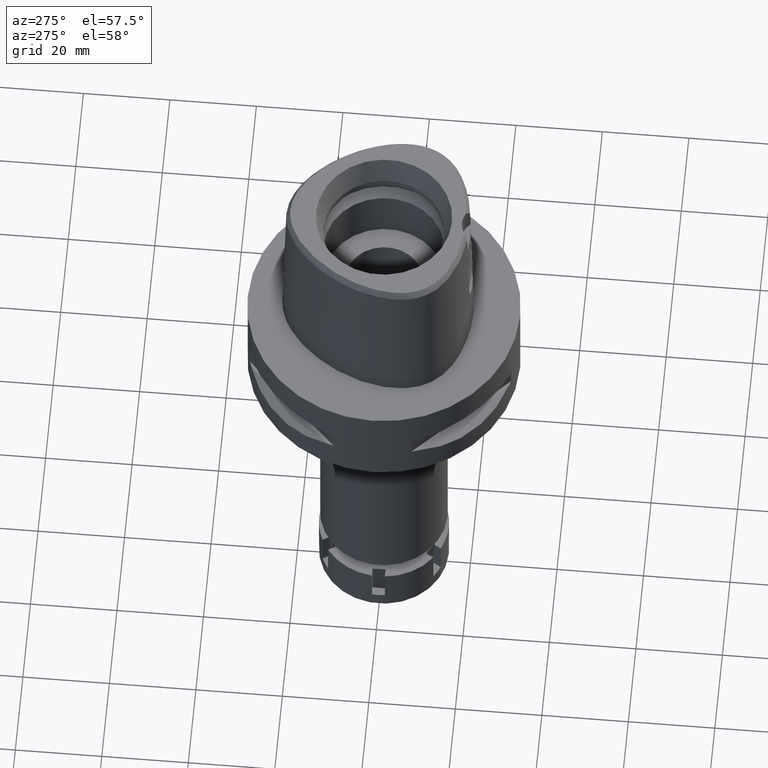
[diagram: clean part render]
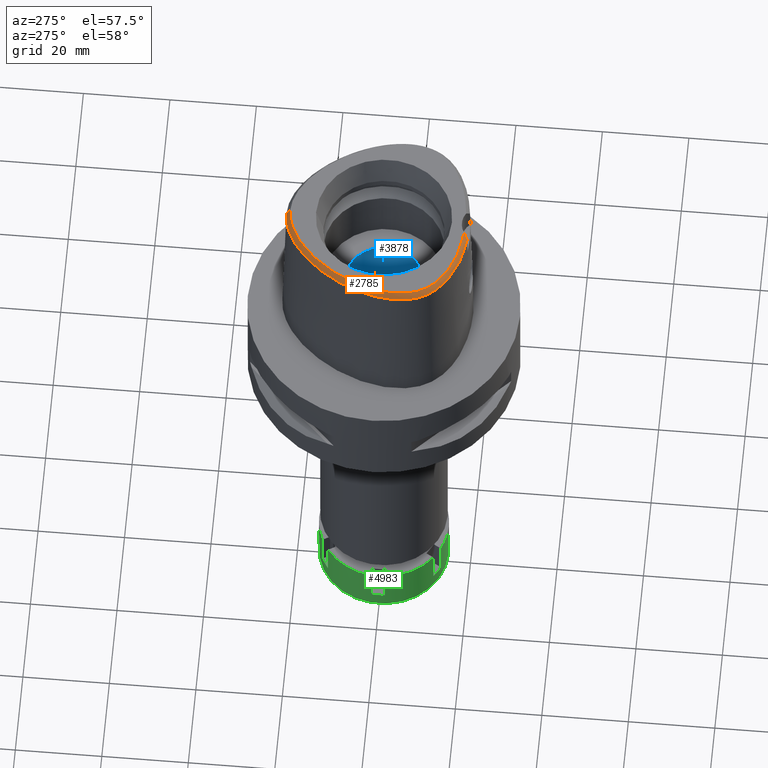
[diagram: same view with three faces highlighted in distinct colors, each labeled with its STEP entity id]
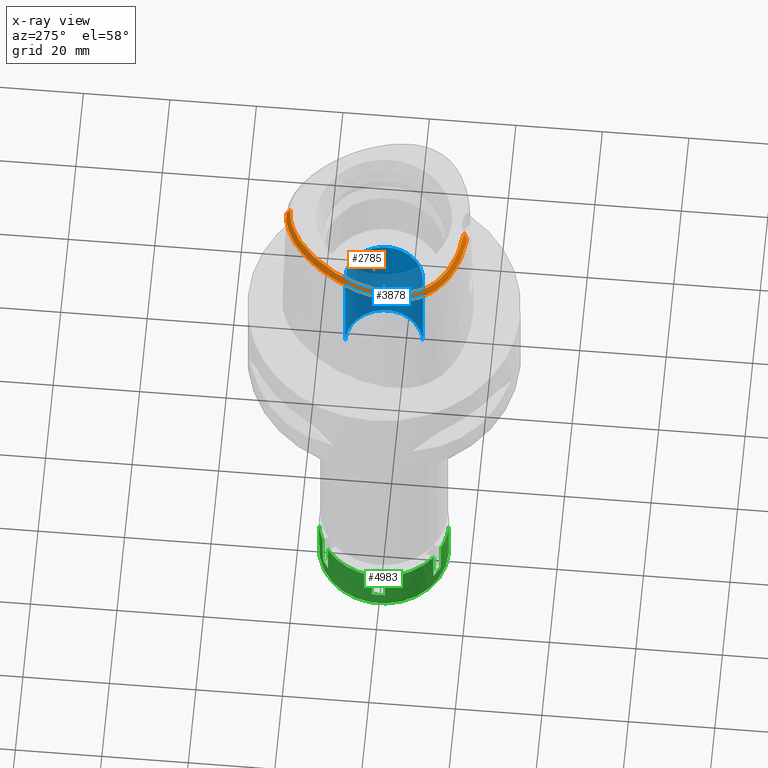
[diagram: x-ray of the same camera — body ghosted, the three highlighted faces saturated]
A machine part, auxiliary view with three faces highlighted in distinct colors.
The next image is the same camera in x-ray (body ghosted, the three faces saturated) — at least one of them is partly hidden behind the body in this view.
Their STEP definitions:

[orange] entity #2785 — the highlighted face is a freeform B-spline surface patch.
#8 = CARTESIAN_POINT ( 'NONE',  ( -3.470663397234000221E-11, 21.68728795390000030, 38.00000000000000000 ) ) ;
#13 = ORIENTED_EDGE ( 'NONE', *, *, #88, .F. ) ;
#19 = CARTESIAN_POINT ( 'NONE',  ( -16.29432981157000171, -13.68958117435999888, 38.16872381523999280 ) ) ;
#27 = CARTESIAN_POINT ( 'NONE',  ( -0.6436387824285999537, 21.57406716771999911, 38.16872382019000298 ) ) ;
#45 = CARTESIAN_POINT ( 'NONE',  ( -3.512396070640999568, -18.60880425035999863, 38.16872370361999600 ) ) ;
#57 = CARTESIAN_POINT ( 'NONE',  ( -0.02690056337536000236, 22.31012763485000150, 36.95830684941000044 ) ) ;
#85 = CARTESIAN_POINT ( 'NONE',  ( -7.798238249675000233, 19.30976713213999929, 37.56351523000000725 ) ) ;
#88 = EDGE_CURVE ( 'NONE', #388, #4146, #4520, .T. ) ;
#109 = CARTESIAN_POINT ( 'NONE',  ( -16.62719897768999999, 10.22545450412000001, 36.95830665445999585 ) ) ;
#131 = CARTESIAN_POINT ( 'NONE',  ( -16.93462122388000068, 10.40945952977000211, 36.35309808499999917 ) ) ;
#162 = CARTESIAN_POINT ( 'NONE',  ( -19.51006220654999979, 2.945084925828000078, 37.56351577405000342 ) ) ;
#188 = CARTESIAN_POINT ( 'NONE',  ( -11.14829298994999895, 17.58520638685000037, 36.35310210553999610 ) ) ;
#217 = CARTESIAN_POINT ( 'NONE',  ( -9.689030453037000612, 17.90471930168999748, 37.56351562825999935 ) ) ;
#240 = CARTESIAN_POINT ( 'NONE',  ( -12.44116897271117494, 14.89128547409651837, 37.99999999999884182 ) ) ;
#253 = CARTESIAN_POINT ( 'NONE',  ( -16.86607259343999843, -13.15495413868999997, 38.16872380465999726 ) ) ;
#273 = DIRECTION ( 'NONE',  ( -1.086165813592015260E-11, -0.5092834681090075977, 0.8605988316927122295 ) ) ;
#278 = CARTESIAN_POINT ( 'NONE',  ( -20.27898581531880495, -6.181921586189758067, 37.99999999999607070 ) ) ;
#289 = CARTESIAN_POINT ( 'NONE',  ( -21.01733586181999769, -4.317173790026999747, 36.95830674960999573 ) ) ;
#303 = CARTESIAN_POINT ( 'NONE',  ( -11.46564124494127235, 15.92741340513251203, 37.99999999999701572 ) ) ;
#315 = CARTESIAN_POINT ( 'NONE',  ( -19.11825126140000108, -12.14454190434999958, 36.35309777652999941 ) ) ;
#343 = CARTESIAN_POINT ( 'NONE',  ( -18.67497735023000160, -12.74270473300000006, 36.35309867869000300 ) ) ;
#357 = CARTESIAN_POINT ( 'NONE',  ( -15.00295592774147124, -14.82617991125886014, 37.99999999999964473 ) ) ;
#365 = CARTESIAN_POINT ( 'NONE',  ( -20.17981815055999917, -6.169836484275999844, 38.16872374791999789 ) ) ;
#386 = CARTESIAN_POINT ( 'NONE',  ( -16.53104942499999908, -13.95861899197999811, 37.56351516739000118 ) ) ;
#388 = VERTEX_POINT ( 'NONE', #2787 ) ;
#393 = CARTESIAN_POINT ( 'NONE',  ( 0.6287754934645000127, 22.28686580030999664, 36.95830633366999507 ) ) ;
#415 = CARTESIAN_POINT ( 'NONE',  ( -13.45760849536999970, -16.07874701501999937, 37.56351520148000134 ) ) ;
#422 = CARTESIAN_POINT ( 'NONE',  ( -4.474174503921999779, 21.44297435266999940, 36.95830662534999789 ) ) ;
#445 = CARTESIAN_POINT ( 'NONE',  ( -14.72040796257999951, -16.17604113694999768, 36.35309856269000051 ) ) ;
#450 = CARTESIAN_POINT ( 'NONE',  ( -2.886057697556000168, 21.94380378582999924, 36.95830701560000620 ) ) ;
#457 = CARTESIAN_POINT ( 'NONE',  ( -4.757642277158784516, 21.67478330407541165, 36.52186244848006424 ) ) ;
#463 = EDGE_CURVE ( 'NONE', #1185, #4046, #1888, .T. ) ;
#467 = CARTESIAN_POINT ( 'NONE',  ( -15.55887374948000001, -15.62730769746000270, 36.35309904140999748 ) ) ;
#475 = CARTESIAN_POINT ( 'NONE',  ( -2.798701059577999750, 21.59625093995000000, 37.56351537525000595 ) ) ;
#481 = CARTESIAN_POINT ( 'NONE',  ( -3.637738201363999835, -19.56971413236999879, 36.52186244848000030 ) ) ;
#494 = CARTESIAN_POINT ( 'NONE',  ( -11.55252081661999952, -17.37832976113999806, 36.95830648018000630 ) ) ;
#508 = CARTESIAN_POINT ( 'NONE',  ( -2.131033890882000126, 22.10901219944999951, 36.95830663274999495 ) ) ;
#531 = CARTESIAN_POINT ( 'NONE',  ( -14.55220022403000080, 12.70069801775000151, 37.56351541121999560 ) ) ;
#555 = CARTESIAN_POINT ( 'NONE',  ( -15.12949461999000000, 13.12519990955000004, 36.35309879171000347 ) ) ;
#581 = CARTESIAN_POINT ( 'NONE',  ( -19.71263020249000064, 4.589853288267000231, 36.35309744616999694 ) ) ;
#616 = CARTESIAN_POINT ( 'NONE',  ( -15.76051816029000108, 11.59852008273000123, 36.95830728170000157 ) ) ;
#646 = CARTESIAN_POINT ( 'NONE',  ( -12.36675498341000079, 14.82465314006000057, 38.16872370515999791 ) ) ;
#661 = CARTESIAN_POINT ( 'NONE',  ( -1.605104576365000191E-11, 22.56201468012000078, 36.52186680743999858 ) ) ;
#664 = CARTESIAN_POINT ( 'NONE',  ( -8.578220530113991771, 18.44656747109380746, 38.00000000000457590 ) ) ;
#675 = CARTESIAN_POINT ( 'NONE',  ( -17.91080863007000090, -13.09503517075000012, 36.95830667839000228 ) ) ;
#710 = CARTESIAN_POINT ( 'NONE',  ( -17.64378103977000123, -12.85602942180999975, 37.56351523395000669 ) ) ;
#731 = CARTESIAN_POINT ( 'NONE',  ( -3.637738201363999835, -19.56971413236999879, 36.52186244848000030 ) ) ;
#732 = CARTESIAN_POINT ( 'NONE',  ( -16.09805956313750386, 9.908742513516285655, 38.00000000000466116 ) ) ;
#740 = CARTESIAN_POINT ( 'NONE',  ( -18.82398216632999777, -11.93999202327999853, 36.95830645934999836 ) ) ;
#752 = CARTESIAN_POINT ( 'NONE',  ( -20.67704215115784194, -8.734985316448916848, 36.52186244848006424 ) ) ;
#756 = CARTESIAN_POINT ( 'NONE',  ( -18.31748213707382789, -11.58791794387434315, 37.99999999999423750 ) ) ;
#765 = CARTESIAN_POINT ( 'NONE',  ( -18.59065043438000231, -10.98381105831999882, 38.16872377513999481 ) ) ;
#783 = CARTESIAN_POINT ( 'NONE',  ( -20.40060226222749762, -4.311417605381639540, 38.00000000000596145 ) ) ;
#793 = CARTESIAN_POINT ( 'NONE',  ( -19.45562891287999818, -9.193149023882000392, 38.16872374790000322 ) ) ;
#818 = CARTESIAN_POINT ( 'NONE',  ( -7.575727454373000214, -17.91305824197000263, 38.16872348895999778 ) ) ;
#826 = CARTESIAN_POINT ( 'NONE',  ( -8.946150824643000377, 18.94152778470999721, 36.95830630630999991 ) ) ;
#841 = CARTESIAN_POINT ( 'NONE',  ( -12.32853476946000093, -16.25077885259999988, 38.16872381441000073 ) ) ;
#849 = CARTESIAN_POINT ( 'NONE',  ( -0.6885493688413000246, 22.28942238736000192, 36.95830648894000348 ) ) ;
#873 = CARTESIAN_POINT ( 'NONE',  ( -9.105547267357000152, -18.24122604947000070, 36.95830930912000412 ) ) ;
#881 = CARTESIAN_POINT ( 'NONE',  ( -1.311254254138000119, 21.51185336584000041, 38.16872385594000150 ) ) ;
#902 = CARTESIAN_POINT ( 'NONE',  ( -4.692859586827999863, -18.46833845743000069, 38.16872379206999710 ) ) ;
#908 = CARTESIAN_POINT ( 'NONE',  ( 0.3876265944191999435, 21.58211490614000283, 38.16872379590000008 ) ) ;
#915 = CARTESIAN_POINT ( 'NONE',  ( -19.88562090098038126, 4.345879983792427126, 36.52186244848006424 ) ) ;
#924 = CARTESIAN_POINT ( 'NONE',  ( -15.35458336243999966, -15.33290680021999997, 36.95830725940999884 ) ) ;
#932 = CARTESIAN_POINT ( 'NONE',  ( -6.890650778750000427, 19.87718702344999855, 37.56351522010999844 ) ) ;
#938 = CARTESIAN_POINT ( 'NONE',  ( -7.108589416785742188, 20.52412325828634465, 36.52186244848006424 ) ) ;
#964 = CARTESIAN_POINT ( 'NONE',  ( -15.16373769635999835, 11.20188546153000075, 38.16872369178999946 ) ) ;
#991 = CARTESIAN_POINT ( 'NONE',  ( -17.83752904520000016, 7.209949515747999804, 37.56351549445000160 ) ) ;
#1017 = CARTESIAN_POINT ( 'NONE',  ( -18.81170240876999955, 5.909790684736999644, 36.95830685404000349 ) ) ;
#1048 = CARTESIAN_POINT ( 'NONE',  ( -20.58870177908000088, 1.762756799173999855, 36.35310236188000488 ) ) ;
#1078 = CARTESIAN_POINT ( 'NONE',  ( -16.79844429764999703, 8.470633092706000511, 38.16872375537999318 ) ) ;
#1103 = CARTESIAN_POINT ( 'NONE',  ( -20.02973090975000048, -8.618895931241999264, 37.56351521209000310 ) ) ;
#1123 = CARTESIAN_POINT ( 'NONE',  ( -15.71788912669151728, -14.29843101566111407, 37.99999999999774047 ) ) ;
#1135 = CARTESIAN_POINT ( 'NONE',  ( -21.37564904598000126, -4.320518048958000179, 36.35309823542000629 ) ) ;
#1153 = CARTESIAN_POINT ( 'NONE',  ( -16.36032397153647011, -13.76458520345492609, 38.00000000000315481 ) ) ;
#1166 = CARTESIAN_POINT ( 'NONE',  ( -19.20356459454000131, -11.35542892024000139, 36.95830676710999541 ) ) ;
#1183 = CARTESIAN_POINT ( 'NONE',  ( -6.759433772717263089, 19.65454812513456773, 37.99999999999522515 ) ) ;
#1185 = VERTEX_POINT ( 'NONE', #2239 ) ;
#1191 = CARTESIAN_POINT ( 'NONE',  ( -20.28322115408999693, -3.282835526598999909, 38.16872379886999767 ) ) ;
#1208 = CARTESIAN_POINT ( 'NONE',  ( -19.28591707036977354, -9.869682450886722691, 37.99999999999383249 ) ) ;
#1216 = CARTESIAN_POINT ( 'NONE',  ( -19.54186096167000031, -10.75548879185999951, 36.95830645885000365 ) ) ;
#1235 = CARTESIAN_POINT ( 'NONE',  ( -19.64434054693230181, 1.520253387635584374, 37.99999999999242561 ) ) ;
#1244 = CARTESIAN_POINT ( 'NONE',  ( -15.65635849444000094, -14.21972652745999888, 38.16872378064000060 ) ) ;
#1257 = B_SPLINE_CURVE_WITH_KNOTS ( 'NONE', 3,
 ( #731, #1648, #2523, #3358, #5075, #3677, #2010, #2447, #4164, #2887, #752, #2469, #4185, #4266, #915, #2963, #3471, #5195, #938, #457, #2170, #5523, #2116 ),
 .UNSPECIFIED., .F., .F.,
 ( 4, 1, 1, 1, 1, 1, 1, 1, 1, 1, 1, 1, 1, 1, 1, 1, 1, 1, 1, 1, 4 ),
 ( 0.0000000000000000000, 0.03580973941715963338, 0.1234633994701163778, 0.1672902294965422088, 0.2111170595230732472, 0.2549438895494990920, 0.2768573045627119034, 0.2987707195759248813, 0.3206841345891377482, 0.3425975496023507261, 0.3864243796288816535, 0.4302512096552022491, 0.4740780396817332876, 0.5617316997345848106, 0.6493853597875417494, 0.7370390198403932169, 0.8246926798932449065, 0.8685195099196707513, 0.9123463399461700929, 0.9561731699726065958, 1.000000000000000000 ),
 .UNSPECIFIED. ) ;
#1268 = CARTESIAN_POINT ( 'NONE',  ( -13.62819684874000004, -16.39385889837000221, 36.95830660090000208 ) ) ;
#1275 = CARTESIAN_POINT ( 'NONE',  ( -3.774466227939000440, 22.06506135082999975, 36.35309852534999919 ) ) ;
#1276 = EDGE_CURVE ( 'NONE', #1185, #4146, #4040, .T. ) ;
#1290 = CARTESIAN_POINT ( 'NONE',  ( -16.09777656805000134, -14.78434909503000050, 36.95830673311999703 ) ) ;
#1298 = FACE_OUTER_BOUND ( 'NONE', #4043, .T. ) ;
#1319 = CARTESIAN_POINT ( 'NONE',  ( -6.372690828149999653, -19.27570801298000092, 36.35309788744999793 ) ) ;
#1326 = CARTESIAN_POINT ( 'NONE',  ( -3.558791132027999904, 21.38156946216999899, 37.56351534063000486 ) ) ;
#1347 = CARTESIAN_POINT ( 'NONE',  ( -3.587728129802000065, -19.32125625604999897, 36.95830720866000263 ) ) ;
#1354 = CARTESIAN_POINT ( 'NONE',  ( -6.341678578513000097, 20.99837909750999998, 36.35309870789000541 ) ) ;
#1378 = CARTESIAN_POINT ( 'NONE',  ( -9.460674903598000895, 17.62860925832999826, 38.16872363707999938 ) ) ;
#1402 = CARTESIAN_POINT ( 'NONE',  ( -2.128454679087000034, -19.79654798023999973, 36.35309896839999766 ) ) ;
#1411 = CARTESIAN_POINT ( 'NONE',  ( -10.90624337194999960, 17.32102727224000205, 36.95830919752000199 ) ) ;
#1438 = CARTESIAN_POINT ( 'NONE',  ( -18.70264189535999932, 4.222079149846000412, 38.16872385882999907 ) ) ;
#1460 = CARTESIAN_POINT ( 'NONE',  ( -3.339321438933200881, -19.25325016381178500, 37.10705438579190485 ) ) ;
#1462 = CARTESIAN_POINT ( 'NONE',  ( -19.89462825210000219, 1.584525003521999986, 37.56351635744000106 ) ) ;
#1492 = CARTESIAN_POINT ( 'NONE',  ( -20.54615437634000230, 0.3475411593985999748, 36.95830887824999422 ) ) ;
#1524 = CARTESIAN_POINT ( 'NONE',  ( -21.12417888789000031, -0.8637613582461999284, 36.35309858184000120 ) ) ;
#1553 = CARTESIAN_POINT ( 'NONE',  ( -17.83168944763000141, -12.07580734973999981, 38.16872373256000373 ) ) ;
#1568 = CARTESIAN_POINT ( 'NONE',  ( -18.79649882725046695, 4.256255933891416099, 37.99999999999936051 ) ) ;
#1580 = CARTESIAN_POINT ( 'NONE',  ( -20.97946740913999975, -5.318370187998000098, 36.95830727728999676 ) ) ;
#1598 = CARTESIAN_POINT ( 'NONE',  ( -8.930096025510399826, -17.65000298921459887, 38.00000000000218137 ) ) ;
#1607 = CARTESIAN_POINT ( 'NONE',  ( -21.35709808394999953, -3.234511685156000294, 36.35309803144000540 ) ) ;
#1625 = CARTESIAN_POINT ( 'NONE',  ( -3.522896839654274359, -18.70811514173501777, 38.00000000000078870 ) ) ;
#1635 = CARTESIAN_POINT ( 'NONE',  ( -20.58366300915999858, -7.955139712395000728, 36.95830656030000227 ) ) ;
#1648 = CARTESIAN_POINT ( 'NONE',  ( -4.467522189395195298, -19.48130287050924991, 36.52186244848006424 ) ) ;
#1650 = CARTESIAN_POINT ( 'NONE',  ( -18.24302769442361694, 5.671232572958188278, 37.99999999999500488 ) ) ;
#1658 = CARTESIAN_POINT ( 'NONE',  ( -2.715103909121999948, -19.75697376311000042, 36.35309907407000196 ) ) ;
#1686 = CARTESIAN_POINT ( 'NONE',  ( -6.304958321667999854, -18.92387912382999815, 36.95830652951000417 ) ) ;
#1689 = B_SPLINE_SURFACE_WITH_KNOTS ( 'NONE', 3, 3, ( 
 ( #4258, #1693, #393, #2596 ),
 ( #908, #3910, #3884, #4700 ),
 ( #5548, #3832, #57, #3039 ),
 ( #27, #3407, #849, #4757 ),
 ( #881, #3457, #2566, #4317 ),
 ( #2624, #4341, #508, #5184 ),
 ( #2136, #475, #450, #2163 ),
 ( #2541, #1326, #1770, #1275 ),
 ( #2983, #5571, #422, #2646 ),
 ( #3486, #1719, #3432, #5212 ),
 ( #5151, #3008, #4782, #1354 ),
 ( #3065, #932, #4367, #2221 ),
 ( #3941, #85, #1796, #3510 ),
 ( #5238, #4729, #826, #3120 ),
 ( #1378, #217, #4504, #4055 ),
 ( #2721, #1821, #1411, #188 ),
 ( #3091, #2675, #2276, #2249 ),
 ( #646, #3989, #4807, #2755 ),
 ( #4082, #3178, #3536, #5292 ),
 ( #4392, #531, #4863, #555 ),
 ( #964, #4023, #616, #3595 ),
 ( #5263, #3966, #109, #131 ),
 ( #1078, #4838, #2340, #1853 ),
 ( #1903, #991, #2697, #3569 ),
 ( #3622, #4417, #1017, #4441 ),
 ( #1438, #3150, #4926, #581 ),
 ( #2309, #162, #1877, #5343 ),
 ( #5315, #1462, #4889, #1048 ),
 ( #2368, #4472, #1492, #3216 ),
 ( #2790, #1933, #3658, #1524 ),
 ( #2401, #3716, #2075, #1968 ),
 ( #1191, #5013, #2512, #1607 ),
 ( #5432, #4151, #289, #1135 ),
 ( #2873, #3298, #1580, #4228 ),
 ( #365, #2052, #4955, #4175 ),
 ( #3347, #2023, #1997, #4597 ),
 ( #2844, #5378, #1635, #3773 ),
 ( #3323, #1103, #2899, #2818 ),
 ( #793, #5486, #4203, #5043 ),
 ( #5065, #3243, #2924, #2432 ),
 ( #4982, #5407, #1216, #4118 ),
 ( #765, #5462, #1166, #2457 ),
 ( #3269, #4623, #740, #315 ),
 ( #1553, #3744, #2483, #343 ),
 ( #4535, #710, #675, #4648 ),
 ( #253, #3688, #4568, #3424 ),
 ( #19, #386, #2129, #2557 ),
 ( #1244, #2095, #1290, #1710 ),
 ( #2637, #5172, #924, #467 ),
 ( #2587, #2534, #1762, #445 ),
 ( #2998, #415, #1268, #4358 ),
 ( #841, #4310, #3851, #2180 ),
 ( #2156, #4719, #494, #2616 ),
 ( #5092, #4251, #2951, #5142 ),
 ( #1733, #3031, #873, #5540 ),
 ( #818, #4673, #4749, #3876 ),
 ( #3448, #3824, #1686, #1319 ),
 ( #902, #4333, #3399, #3900 ),
 ( #45, #3479, #1347, #5205 ),
 ( #3058, #3797, #5507, #1658 ),
 ( #4773, #3369, #5119, #2974 ),
 ( #4692, #4278, #5569, #1402 ) ),
 .UNSPECIFIED., .F., .F., .F.,
 ( 4, 1, 1, 1, 1, 1, 1, 1, 1, 1, 1, 1, 1, 1, 1, 1, 1, 1, 1, 1, 1, 1, 1, 1, 1, 1, 1, 1, 1, 1, 1, 1, 1, 1, 1, 1, 1, 1, 1, 1, 1, 1, 1, 1, 1, 1, 1, 1, 1, 1, 1, 1, 1, 1, 1, 1, 1, 1, 1, 4 ),
 ( 4, 4 ),
 ( -0.01585043674195000044, 0.0000000000000000000, 0.01776034072165999858, 0.03552068144391999638, 0.05328102216616999870, 0.07104136288842999303, 0.08880170361069000817, 0.1065620443330000111, 0.1243223850551999909, 0.1420827257775000019, 0.1598430664997000095, 0.1776034072219000171, 0.1953637479442000002, 0.2131240886664000078, 0.2308844293887999943, 0.2486447701109999742, 0.2664051108332999851, 0.2841654515554999927, 0.3019257922778000314, 0.3196861329999999835, 0.3374464737223000221, 0.3552068144444999742, 0.3729671551668000129, 0.3907274958890999961, 0.4084878366113000037, 0.4262481773335999868, 0.4440085180557999944, 0.4617688587780999776, 0.4795291995003000407, 0.4972895402225999684, 0.5150498809447999760, 0.5328102216671000146, 0.5505705623893999423, 0.5683309031115999499, 0.5860912438338999886, 0.6038515845561001072, 0.6216119252783999238, 0.6393722660005999314, 0.6571326067228999701, 0.6748929474452000088, 0.6926532881674000164, 0.7104136288896999440, 0.7281739696118999516, 0.7459343103341999903, 0.7636946510563999979, 0.7814549917787000366, 0.7992153325008999332, 0.8169756732231999719, 0.8347360139455000105, 0.8524963546678000492, 0.8702566953900000568, 0.8880170361122000644, 0.9057773768344999921, 0.9235377175566999997, 0.9412980582790000383, 0.9590583990012000459, 0.9768187397236000047, 0.9945790804457999013, 1.000000000000000000, 1.006922200500000031 ),
 ( -0.09052495085692000010, 1.090549176495999806 ),
 .UNSPECIFIED. ) ;
#1693 = CARTESIAN_POINT ( 'NONE',  ( 0.6089110810236999516, 21.92928468042000034, 37.56351508950999829 ) ) ;
#1710 = CARTESIAN_POINT ( 'NONE',  ( -16.31848560485000021, -15.06666037880999909, 36.35309820935999880 ) ) ;
#1719 = CARTESIAN_POINT ( 'NONE',  ( -5.163925551242999568, 20.77028980652000101, 37.56351535171000222 ) ) ;
#1733 = CARTESIAN_POINT ( 'NONE',  ( -8.901678066227999508, -17.55424218025000016, 38.16872336340999539 ) ) ;
#1752 = CARTESIAN_POINT ( 'NONE',  ( -2.735698246183097648, 21.34559102902244732, 38.00000000000188294 ) ) ;
#1762 = CARTESIAN_POINT ( 'NONE',  ( -14.53284756085999874, -15.87071777937000228, 36.95830695660000487 ) ) ;
#1770 = CARTESIAN_POINT ( 'NONE',  ( -3.666628679983999994, 21.72331540649999582, 36.95830693298999847 ) ) ;
#1796 = CARTESIAN_POINT ( 'NONE',  ( -7.996536422871000305, 19.60821335981000146, 36.95830666898000061 ) ) ;
#1821 = CARTESIAN_POINT ( 'NONE',  ( -10.66419375395000024, 17.05684815763000373, 37.56351628950000077 ) ) ;
#1844 = ORIENTED_EDGE ( 'NONE', *, *, #1276, .T. ) ;
#1853 = CARTESIAN_POINT ( 'NONE',  ( -17.74578044748000138, 8.978423837253000528, 36.35309845592999523 ) ) ;
#1877 = CARTESIAN_POINT ( 'NONE',  ( -19.85228703218999868, 3.051175565922000121, 36.95830796735999968 ) ) ;
#1888 = B_SPLINE_CURVE_WITH_KNOTS ( 'NONE', 3,
 ( #3176, #5261, #1460, #2365 ),
 .UNSPECIFIED., .F., .F.,
 ( 4, 4 ),
 ( 0.0000000000000000000, 1.000000000000000000 ),
 .UNSPECIFIED. ) ;
#1903 = CARTESIAN_POINT ( 'NONE',  ( -17.51410271551999998, 7.055799692946999713, 38.16872368880000721 ) ) ;
#1933 = CARTESIAN_POINT ( 'NONE',  ( -20.41563536772000020, -0.9710199763908999859, 37.56351535559999633 ) ) ;
#1957 = CARTESIAN_POINT ( 'NONE',  ( -7.655222869371971051, 19.09452359226109763, 37.99999999999761968 ) ) ;
#1968 = CARTESIAN_POINT ( 'NONE',  ( -21.27534687873999886, -2.081884351022999624, 36.35309762211000617 ) ) ;
#1988 = CARTESIAN_POINT ( 'NONE',  ( -19.26324493738805188, 2.868570891456949212, 37.99999999999948841 ) ) ;
#1997 = CARTESIAN_POINT ( 'NONE',  ( -20.75784957939000108, -7.134023522072999945, 36.95830652513000558 ) ) ;
#2010 = CARTESIAN_POINT ( 'NONE',  ( -17.90324032096892992, -13.53935111954918469, 36.52186244848006424 ) ) ;
#2011 = CARTESIAN_POINT ( 'NONE',  ( -17.60426951086490988, 7.098774535281921594, 37.99999999999295142 ) ) ;
#2023 = CARTESIAN_POINT ( 'NONE',  ( -20.40522132167000180, -7.070233729153000191, 37.56351516972999605 ) ) ;
#2052 = CARTESIAN_POINT ( 'NONE',  ( -20.53553040265000007, -6.213185481441000135, 37.56351534152000227 ) ) ;
#2067 = CARTESIAN_POINT ( 'NONE',  ( -4.706994425064851661, -18.56721852572427167, 38.00000000000611067 ) ) ;
#2075 = CARTESIAN_POINT ( 'NONE',  ( -20.91875502418999844, -2.116976979544000326, 36.95830636167000449 ) ) ;
#2095 = CARTESIAN_POINT ( 'NONE',  ( -15.87706753124000159, -14.50203781123999924, 37.56351525688000237 ) ) ;
#2116 = CARTESIAN_POINT ( 'NONE',  ( -1.605104576365000191E-11, 22.56201468012000078, 36.52186680743999858 ) ) ;
#2129 = CARTESIAN_POINT ( 'NONE',  ( -16.76776903842999999, -14.22765680959999912, 36.95830651954000245 ) ) ;
#2136 = CARTESIAN_POINT ( 'NONE',  ( -2.711344421600000221, 21.24869809405999987, 38.16872373488999415 ) ) ;
#2156 = CARTESIAN_POINT ( 'NONE',  ( -11.27990856527999952, -16.71558795316000001, 38.16872382160999422 ) ) ;
#2163 = CARTESIAN_POINT ( 'NONE',  ( -2.973414335534000141, 22.29135663171999937, 36.35309865596000378 ) ) ;
#2170 = CARTESIAN_POINT ( 'NONE',  ( -2.376843896518022525, 22.39422508473924012, 36.52186244848006424 ) ) ;
#2180 = CARTESIAN_POINT ( 'NONE',  ( -12.78901410641999981, -17.22210534259999903, 36.35309787969999462 ) ) ;
#2221 = CARTESIAN_POINT ( 'NONE',  ( -7.254529020842999998, 20.49458756770999912, 36.35309807064000154 ) ) ;
#2239 = CARTESIAN_POINT ( 'NONE',  ( -2.682279906006999948, -18.78035848609999903, 38.00000000000000000 ) ) ;
#2249 = CARTESIAN_POINT ( 'NONE',  ( -12.15927216456999993, 16.61260939799000269, 36.35310190737999392 ) ) ;
#2276 = CARTESIAN_POINT ( 'NONE',  ( -11.90437454573000053, 16.36081147191999818, 36.95830907218000050 ) ) ;
#2309 = CARTESIAN_POINT ( 'NONE',  ( -19.16783738091000089, 2.838994285734000034, 38.16872358073000271 ) ) ;
#2340 = CARTESIAN_POINT ( 'NONE',  ( -17.43000173086999638, 8.809160255736999900, 36.95830688907999928 ) ) ;
#2365 = CARTESIAN_POINT ( 'NONE',  ( -3.637738201363999835, -19.56971413236999879, 36.52186244848000030 ) ) ;
#2368 = CARTESIAN_POINT ( 'NONE',  ( -19.84401643730999965, 0.2042856708023999823, 38.16872343320000027 ) ) ;
#2387 = CARTESIAN_POINT ( 'NONE',  ( -20.16012968311473941, -1.009698174524138237, 37.99999999999798916 ) ) ;
#2401 = CARTESIAN_POINT ( 'NONE',  ( -20.20557131509000115, -2.187162236584999864, 38.16872384081000291 ) ) ;
#2432 = CARTESIAN_POINT ( 'NONE',  ( -20.17653247467000099, -10.26699311273000070, 36.35309825342999801 ) ) ;
#2447 = CARTESIAN_POINT ( 'NONE',  ( -18.90964971337956158, -12.28759719905196945, 36.52186244848006424 ) ) ;
#2449 = CARTESIAN_POINT ( 'NONE',  ( -17.91005512243981457, -12.13778127739715451, 37.99999999999999289 ) ) ;
#2457 = CARTESIAN_POINT ( 'NONE',  ( -19.51002167461999903, -11.54123785121000090, 36.35309826309000414 ) ) ;
#2469 = CARTESIAN_POINT ( 'NONE',  ( -21.14970188364242532, -6.717195958887598906, 36.52186244848006424 ) ) ;
#2483 = CARTESIAN_POINT ( 'NONE',  ( -18.39388138270000184, -12.52040560524999968, 36.95830702997999850 ) ) ;
#2500 = CARTESIAN_POINT ( 'NONE',  ( -20.38301517462847556, -3.278344853327750386, 38.00000000000068923 ) ) ;
#2512 = CARTESIAN_POINT ( 'NONE',  ( -20.99913910733000222, -3.250619632303999751, 36.95830662059000105 ) ) ;
#2523 = CARTESIAN_POINT ( 'NONE',  ( -7.300578999876884190, -19.07170748892257706, 36.52186244848006424 ) ) ;
#2525 = CARTESIAN_POINT ( 'NONE',  ( -5.893543501601380186, 20.13235399352179300, 38.00000000000135714 ) ) ;
#2534 = CARTESIAN_POINT ( 'NONE',  ( -14.34528715913999974, -15.56539442177999888, 37.56351535051999946 ) ) ;
#2541 = CARTESIAN_POINT ( 'NONE',  ( -3.450953584073000346, 21.03982351783999860, 38.16872374826999703 ) ) ;
#2557 = CARTESIAN_POINT ( 'NONE',  ( -17.00448865185999736, -14.49669462722000013, 36.35309787168999662 ) ) ;
#2566 = CARTESIAN_POINT ( 'NONE',  ( -1.400356848483000016, 22.22304444783999955, 36.95830626822999676 ) ) ;
#2587 = CARTESIAN_POINT ( 'NONE',  ( -14.15772675742000075, -15.26007106419999992, 38.16872374443999405 ) ) ;
#2596 = CARTESIAN_POINT ( 'NONE',  ( 0.6486399059052999627, 22.64444692021000094, 36.35309757783999629 ) ) ;
#2616 = CARTESIAN_POINT ( 'NONE',  ( -11.68882694229000130, -17.70970066514000152, 36.35309780946000302 ) ) ;
#2624 = CARTESIAN_POINT ( 'NONE',  ( -1.998559107379999977, 21.40462102677999923, 38.16872379689999661 ) ) ;
#2637 = CARTESIAN_POINT ( 'NONE',  ( -14.94600258835999895, -14.74410500574000160, 38.16872369540000420 ) ) ;
#2646 = CARTESIAN_POINT ( 'NONE',  ( -4.601767809367999895, 21.77783845468999857, 36.35309803898000069 ) ) ;
#2675 = CARTESIAN_POINT ( 'NONE',  ( -11.64947692688000025, 16.10901354585000078, 37.56351623697999997 ) ) ;
#2697 = CARTESIAN_POINT ( 'NONE',  ( -18.16095537487999678, 7.364099338549999985, 36.95830730011000043 ) ) ;
#2721 = CARTESIAN_POINT ( 'NONE',  ( -10.42214413594000000, 16.79266904300999741, 38.16872338149000399 ) ) ;
#2755 = CARTESIAN_POINT ( 'NONE',  ( -13.16751905661999977, 15.54167932979000000, 36.35309894610999493 ) ) ;
#2785 = ADVANCED_FACE ( 'NONE', ( #1298 ), #1689, .F. ) ;
#2787 = CARTESIAN_POINT ( 'NONE',  ( -1.605104576365000191E-11, 22.56201468012000078, 36.52186680743999858 ) ) ;
#2790 = CARTESIAN_POINT ( 'NONE',  ( -20.06136360764000059, -1.024649285463000048, 38.16872374247999744 ) ) ;
#2818 = CARTESIAN_POINT ( 'NONE',  ( -20.71498900974999913, -8.828955522482001328, 36.35309804034999814 ) ) ;
#2832 = CARTESIAN_POINT ( 'NONE',  ( -18.67608643722154582, -11.03561202290969767, 38.00000000000121503 ) ) ;
#2844 = CARTESIAN_POINT ( 'NONE',  ( -19.88709864279000072, -7.786374139105999959, 38.16872380862999847 ) ) ;
#2865 = CARTESIAN_POINT ( 'NONE',  ( -14.21001600787598207, -15.34519100086147603, 37.99999999999534595 ) ) ;
#2873 = CARTESIAN_POINT ( 'NONE',  ( -20.26429661509000013, -5.272008183739000486, 38.16872369250000219 ) ) ;
#2887 = CARTESIAN_POINT ( 'NONE',  ( -20.09619618740711999, -10.23243843868569947, 36.52186244848006424 ) ) ;
#2889 = CARTESIAN_POINT ( 'NONE',  ( -20.30498420087046441, -2.177378896258037155, 38.00000000000289191 ) ) ;
#2899 = CARTESIAN_POINT ( 'NONE',  ( -20.37235995974999625, -8.723925726861999408, 36.95830662621999352 ) ) ;
#2914 = CARTESIAN_POINT ( 'NONE',  ( -19.98419490691983214, -7.809898894995765062, 37.99999999999734968 ) ) ;
#2924 = CARTESIAN_POINT ( 'NONE',  ( -19.84924639291999782, -10.12098817151999874, 36.95830676098999845 ) ) ;
#2941 = CARTESIAN_POINT ( 'NONE',  ( -2.017025177696853966, 21.50280829367783753, 37.99999999999917577 ) ) ;
#2951 = CARTESIAN_POINT ( 'NONE',  ( -10.37636954249999910, -17.82808771921999735, 36.95830829501999659 ) ) ;
#2963 = CARTESIAN_POINT ( 'NONE',  ( -17.27359245833161694, 9.972912913898657195, 36.52186244848006424 ) ) ;
#2965 = CARTESIAN_POINT ( 'NONE',  ( -3.481017203589023001, 21.13509756882046631, 38.00000000000038369 ) ) ;
#2974 = CARTESIAN_POINT ( 'NONE',  ( -2.339544747279999726, -19.78355784510999982, 36.35309902211999855 ) ) ;
#2983 = CARTESIAN_POINT ( 'NONE',  ( -4.218987893030000436, 20.77324614861000285, 38.16872379808999938 ) ) ;
#2998 = CARTESIAN_POINT ( 'NONE',  ( -13.28702014200000114, -15.76363513167000008, 38.16872380205999349 ) ) ;
#3008 = CARTESIAN_POINT ( 'NONE',  ( -6.012314472062000092, 20.36187997206000233, 37.56351538900999998 ) ) ;
#3031 = CARTESIAN_POINT ( 'NONE',  ( -9.003612666792999875, -17.89773411486000043, 37.56351633626000108 ) ) ;
#3039 = CARTESIAN_POINT ( 'NONE',  ( -0.02767976356809999719, 22.66848708667000167, 36.35309839322000158 ) ) ;
#3058 = CARTESIAN_POINT ( 'NONE',  ( -2.630796431740999974, -18.68579056493999957, 38.16872369205000126 ) ) ;
#3065 = CARTESIAN_POINT ( 'NONE',  ( -6.708711657702999709, 19.56848675131999826, 38.16872379485000266 ) ) ;
#3091 = CARTESIAN_POINT ( 'NONE',  ( -11.39457930803999908, 15.85721561977999983, 38.16872340177999945 ) ) ;
#3120 = CARTESIAN_POINT ( 'NONE',  ( -9.159912934353998892, 19.22909247410000333, 36.35309753458000159 ) ) ;
#3150 = CARTESIAN_POINT ( 'NONE',  ( -19.03930466439999947, 4.344670529319999197, 37.56351505460999363 ) ) ;
#3176 = CARTESIAN_POINT ( 'NONE',  ( -2.682279906006999948, -18.78035848609999903, 38.00000000000000000 ) ) ;
#3178 = CARTESIAN_POINT ( 'NONE',  ( -13.60498005374000030, 13.92553832673000080, 37.56351508224999947 ) ) ;
#3216 = CARTESIAN_POINT ( 'NONE',  ( -20.89722334585000141, 0.4191689036967999882, 36.35310160078000052 ) ) ;
#3243 = CARTESIAN_POINT ( 'NONE',  ( -19.52196031117999908, -9.974983230300999537, 37.56351526855999623 ) ) ;
#3257 = CARTESIAN_POINT ( 'NONE',  ( -13.33457781969976352, -15.85148397417110466, 38.00000000000137135 ) ) ;
#3269 = CARTESIAN_POINT ( 'NONE',  ( -18.23544397618000090, -11.53089226113999999, 38.16872382497999894 ) ) ;
#3283 = CARTESIAN_POINT ( 'NONE',  ( -19.54919922641843755, -9.228169790568353292, 38.00000000000420641 ) ) ;
#3298 = CARTESIAN_POINT ( 'NONE',  ( -20.62188201210999949, -5.295189185867999804, 37.56351548488999725 ) ) ;
#3312 = CARTESIAN_POINT ( 'NONE',  ( -15.24692477332278528, 11.25717358966698711, 38.00000000000222400 ) ) ;
#3323 = CARTESIAN_POINT ( 'NONE',  ( -19.68710185974999760, -8.513866135623000986, 38.16872379795999848 ) ) ;
#3338 = CARTESIAN_POINT ( 'NONE',  ( -12.37132652997963511, -16.34104299088095757, 37.99999999999533884 ) ) ;
#3347 = CARTESIAN_POINT ( 'NONE',  ( -20.05259306393999807, -7.006443936232000347, 38.16872381433000072 ) ) ;
#3358 = CARTESIAN_POINT ( 'NONE',  ( -10.91891098965447782, -18.03046406390822298, 36.52186244848006424 ) ) ;
#3361 = CARTESIAN_POINT ( 'NONE',  ( -14.34402387966080106, 12.54761970512710967, 37.99999999999822364 ) ) ;
#3369 = CARTESIAN_POINT ( 'NONE',  ( -2.291171689391000132, -19.06888159092000024, 37.56351547228999976 ) ) ;
#3386 = CARTESIAN_POINT ( 'NONE',  ( -4.254559144977585028, 20.86660163697103343, 37.99999999999293721 ) ) ;
#3399 = CARTESIAN_POINT ( 'NONE',  ( -4.794262300189999770, -19.17769975710999830, 36.95830666261999653 ) ) ;
#3407 = CARTESIAN_POINT ( 'NONE',  ( -0.6660940756349000846, 21.93174477753999696, 37.56351515456000101 ) ) ;
#3424 = CARTESIAN_POINT ( 'NONE',  ( -17.62265931448999723, -13.91874722709999901, 36.35309797484000427 ) ) ;
#3432 = CARTESIAN_POINT ( 'NONE',  ( -5.310491089656999897, 21.09728676118000124, 36.95830695943000421 ) ) ;
#3448 = CARTESIAN_POINT ( 'NONE',  ( -6.169493308705000345, -18.22022134552999972, 38.16872381361999800 ) ) ;
#3457 = CARTESIAN_POINT ( 'NONE',  ( -1.355805551310000023, 21.86744890683999998, 37.56351506208999780 ) ) ;
#3471 = CARTESIAN_POINT ( 'NONE',  ( -13.70645028111238162, 15.04851272300706633, 36.52186244848006424 ) ) ;
#3479 = CARTESIAN_POINT ( 'NONE',  ( -3.550062100220999994, -18.96503025319999836, 37.56351545614000287 ) ) ;
#3486 = CARTESIAN_POINT ( 'NONE',  ( -5.017360012830000215, 20.44329285184999989, 38.16872374397999579 ) ) ;
#3510 = CARTESIAN_POINT ( 'NONE',  ( -8.194834596066998600, 19.90665958749000097, 36.35309810796000107 ) ) ;
#3536 = CARTESIAN_POINT ( 'NONE',  ( -13.88315504820999990, 14.15134445426999932, 36.95830631635999453 ) ) ;
#3569 = CARTESIAN_POINT ( 'NONE',  ( -18.48438170456000051, 7.518249161351000076, 36.35309910575999481 ) ) ;
#3595 = CARTESIAN_POINT ( 'NONE',  ( -16.05890839226000111, 11.79683739332999970, 36.35309907665999418 ) ) ;
#3622 = CARTESIAN_POINT ( 'NONE',  ( -18.15091905667999939, 5.632593150201000043, 38.16872376104999631 ) ) ;
#3658 = CARTESIAN_POINT ( 'NONE',  ( -20.76990712781000070, -0.9173906673185999727, 36.95830696872000232 ) ) ;
#3677 = CARTESIAN_POINT ( 'NONE',  ( -16.39211280191463871, -14.95758113319273974, 36.52186244848006424 ) ) ;
#3678 = CARTESIAN_POINT ( 'NONE',  ( -19.78262210839870150, -8.543146992552843599, 38.00000000000232347 ) ) ;
#3688 = CARTESIAN_POINT ( 'NONE',  ( -17.11826816711999655, -13.40955183482999935, 37.56351519472000433 ) ) ;
#3703 = CARTESIAN_POINT ( 'NONE',  ( -18.99520880203937878, -10.46968343926073075, 38.00000000000314770 ) ) ;
#3716 = CARTESIAN_POINT ( 'NONE',  ( -20.56216316964000157, -2.152069608064000050, 37.56351510124000015 ) ) ;
#3730 = CARTESIAN_POINT ( 'NONE',  ( -10.48962422759467117, 16.86631853278972315, 38.00000000000569855 ) ) ;
#3744 = CARTESIAN_POINT ( 'NONE',  ( -18.11278541516000118, -12.29810647750000108, 37.56351538127000111 ) ) ;
#3763 = CARTESIAN_POINT ( 'NONE',  ( -2.682279906006999948, -18.78035848609999903, 38.00000000000000000 ) ) ;
#3773 = CARTESIAN_POINT ( 'NONE',  ( -20.93194519234999618, -8.039522499039000181, 36.35309793614000284 ) ) ;
#3789 = CARTESIAN_POINT ( 'NONE',  ( -19.94188961899529033, 0.2242544969877459937, 38.00000000000364508 ) ) ;
#3797 = CARTESIAN_POINT ( 'NONE',  ( -2.658898924200999936, -19.04285163099999778, 37.56351548605999824 ) ) ;
#3824 = CARTESIAN_POINT ( 'NONE',  ( -6.237225815187000144, -18.57205023468000249, 37.56351517155999886 ) ) ;
#3832 = CARTESIAN_POINT ( 'NONE',  ( -0.02612136318262999954, 21.95176818302000044, 37.56351530561000374 ) ) ;
#3851 = CARTESIAN_POINT ( 'NONE',  ( -12.63552099409999840, -16.89832984593999754, 36.95830652460000465 ) ) ;
#3867 = CARTESIAN_POINT ( 'NONE',  ( -0.2181979014508609871, 21.68728795388821950, 37.99999999999553779 ) ) ;
#3876 = CARTESIAN_POINT ( 'NONE',  ( -7.830148818968998725, -18.95739303391999897, 36.35310105651999635 ) ) ;
#3884 = CARTESIAN_POINT ( 'NONE',  ( 0.4142412495155999852, 22.29803753450999793, 36.95830663892999723 ) ) ;
#3900 = CARTESIAN_POINT ( 'NONE',  ( -4.844963656872000257, -19.53238040695000066, 36.35309809790000202 ) ) ;
#3910 = CARTESIAN_POINT ( 'NONE',  ( 0.4009339219674000199, 21.94007622031999816, 37.56351521740999999 ) ) ;
#3941 = CARTESIAN_POINT ( 'NONE',  ( -7.599940076478999273, 19.01132090447000067, 38.16872379102999702 ) ) ;
#3966 = CARTESIAN_POINT ( 'NONE',  ( -16.31977673149999930, 10.04144947847000147, 37.56351522391999964 ) ) ;
#3989 = CARTESIAN_POINT ( 'NONE',  ( -12.63367634115000016, 15.06366186997000156, 37.56351545214999987 ) ) ;
#4008 = EDGE_CURVE ( 'NONE', #4046, #388, #1257, .T. ) ;
#4023 = CARTESIAN_POINT ( 'NONE',  ( -15.46212792833000016, 11.40020277212999922, 37.56351548674999918 ) ) ;
#4040 = B_SPLINE_CURVE_WITH_KNOTS ( 'NONE', 3,
 ( #3763, #4614, #1625, #2067, #5035, #5004, #1598, #4217, #4635, #3338, #3257, #2865, #357, #1123, #1153, #4558, #5056, #2449, #756, #2832, #3703, #1208, #3283, #3678, #2914, #4141, #278, #4587, #783, #2500, #2889, #2387, #3789, #1235, #1988, #1568, #1650, #2011, #4522, #732, #3312, #3361, #4108, #240, #303, #3730, #5080, #664, #1957, #1183, #2525, #4301, #3386, #2965, #1752, #2941, #4662, #4243, #3867, #8 ),
 .UNSPECIFIED., .F., .F.,
 ( 4, 1, 1, 1, 1, 1, 1, 1, 1, 1, 1, 1, 1, 1, 1, 1, 1, 1, 1, 1, 1, 1, 1, 1, 1, 1, 1, 1, 1, 1, 1, 1, 1, 1, 1, 1, 1, 1, 1, 1, 1, 1, 1, 1, 1, 1, 1, 1, 1, 1, 1, 1, 1, 1, 1, 1, 1, 4 ),
 ( 0.0000000000000000000, 0.005420919554200098744, 0.02318126027639999531, 0.04094160099879995407, 0.05870194172099996166, 0.07646228244330000035, 0.09422262316550000794, 0.1119829638877999356, 0.1297433046099999432, 0.1475036453321999508, 0.1652639860544999895, 0.1830243267768000281, 0.2007846674991000668, 0.2185450082212999634, 0.2363053489436000021, 0.2540656896658000097, 0.2718260303881000484, 0.2895863711103000560, 0.3073467118325999836, 0.3251070525547999912, 0.3428673932771000299, 0.3606277339994000686, 0.3783880747216000762, 0.3961484154438998928, 0.4139087561661000114, 0.4316690968884000501, 0.4494294376106000577, 0.4671897783328999854, 0.4849501190552000240, 0.5027104597774000316, 0.5204708004996999593, 0.5382311412219000779, 0.5559914819442000056, 0.5737518226664000132, 0.5915121633886999408, 0.6092725041108999484, 0.6270328448331999871, 0.6447931855555000258, 0.6625535262777000334, 0.6803138669999999610, 0.6980742077221999686, 0.7158345484445000073, 0.7335948891667000149, 0.7513552298890000536, 0.7691155706112000612, 0.7868759113336000199, 0.8046362520558000275, 0.8223965927780999552, 0.8401569335002999628, 0.8579172742224999704, 0.8756776149448000091, 0.8934379556670000166, 0.9111982963893099363, 0.9289586371115700070, 0.9467189778338299666, 0.9644793185560800453, 0.9822396592783400049, 1.000000000000000000 ),
 .UNSPECIFIED. ) ;
#4043 = EDGE_LOOP ( 'NONE', ( #1844, #13, #4650, #5344 ) ) ;
#4046 = VERTEX_POINT ( 'NONE', #481 ) ;
#4055 = CARTESIAN_POINT ( 'NONE',  ( -10.14574155190999960, 18.45693938839999859, 36.35309961062999662 ) ) ;
#4082 = CARTESIAN_POINT ( 'NONE',  ( -13.32680505926999892, 13.69973219919999963, 38.16872384813999730 ) ) ;
#4108 = CARTESIAN_POINT ( 'NONE',  ( -13.40435640711871912, 13.76268382997430173, 37.99999999999523936 ) ) ;
#4118 = CARTESIAN_POINT ( 'NONE',  ( -19.85945785612000236, -10.92153751372000059, 36.35309777574000378 ) ) ;
#4141 = CARTESIAN_POINT ( 'NONE',  ( -20.15090095365001233, -7.024227649787680328, 37.99999999999921840 ) ) ;
#4146 = VERTEX_POINT ( 'NONE', #4347 ) ;
#4151 = CARTESIAN_POINT ( 'NONE',  ( -20.65902267766999856, -4.313829531095000114, 37.56351526379000205 ) ) ;
#4164 = CARTESIAN_POINT ( 'NONE',  ( -19.55745547455534705, -11.29150218116036619, 36.52186244848006424 ) ) ;
#4175 = CARTESIAN_POINT ( 'NONE',  ( -21.24695490682999832, -6.299883475768999652, 36.35309852870999947 ) ) ;
#4185 = CARTESIAN_POINT ( 'NONE',  ( -21.32871527669725609, -4.105831244394052781, 36.52186244848006424 ) ) ;
#4203 = CARTESIAN_POINT ( 'NONE',  ( -20.12689826339000021, -9.444386477505998911, 36.95830693530999866 ) ) ;
#4211 = VECTOR ( 'NONE', #273, 1000.000000000000227 ) ;
#4217 = CARTESIAN_POINT ( 'NONE',  ( -10.17136073855609091, -17.24644253470005140, 37.99999999999946709 ) ) ;
#4228 = CARTESIAN_POINT ( 'NONE',  ( -21.33705280615999911, -5.341551190128000393, 36.35309906967999893 ) ) ;
#4243 = CARTESIAN_POINT ( 'NONE',  ( -0.6498990081534832264, 21.67378274707867192, 37.99999999999658229 ) ) ;
#4251 = CARTESIAN_POINT ( 'NONE',  ( -10.25726243147000005, -17.49016039005999801, 37.56351591133999790 ) ) ;
#4258 = CARTESIAN_POINT ( 'NONE',  ( 0.5890466685829001126, 21.57170356051999960, 38.16872384534000417 ) ) ;
#4266 = CARTESIAN_POINT ( 'NONE',  ( -21.07430010672788256, -0.4408303445193411108, 36.52186244848006424 ) ) ;
#4278 = CARTESIAN_POINT ( 'NONE',  ( -2.084469966703999866, -19.08160172251000120, 37.56351545804999859 ) ) ;
#4301 = CARTESIAN_POINT ( 'NONE',  ( -5.058220461389600686, 20.53445508814420961, 37.99999999999508304 ) ) ;
#4310 = CARTESIAN_POINT ( 'NONE',  ( -12.48202788177999878, -16.57455434926999871, 37.56351516951000491 ) ) ;
#4317 = CARTESIAN_POINT ( 'NONE',  ( -1.444908145654999920, 22.57863998883999912, 36.35309747437000283 ) ) ;
#4333 = CARTESIAN_POINT ( 'NONE',  ( -4.743560943509000261, -18.82301910727000305, 37.56351522733999815 ) ) ;
#4341 = CARTESIAN_POINT ( 'NONE',  ( -2.064796499130999941, 21.75681661310999715, 37.56351521482000066 ) ) ;
#4347 = CARTESIAN_POINT ( 'NONE',  ( -3.470663397234000221E-11, 21.68728795390000030, 38.00000000000000000 ) ) ;
#4358 = CARTESIAN_POINT ( 'NONE',  ( -13.79878520211000037, -16.70897078171999794, 36.35309800031000549 ) ) ;
#4367 = CARTESIAN_POINT ( 'NONE',  ( -7.072589899795999280, 20.18588729557999883, 36.95830664536999421 ) ) ;
#4392 = CARTESIAN_POINT ( 'NONE',  ( -14.26355302606000031, 12.48844707184000136, 38.16872372097999744 ) ) ;
#4417 = CARTESIAN_POINT ( 'NONE',  ( -18.48131073272000080, 5.771191917469000288, 37.56351530755000567 ) ) ;
#4441 = CARTESIAN_POINT ( 'NONE',  ( -19.14209408482000185, 6.048389452006000866, 36.35309840053000130 ) ) ;
#4472 = CARTESIAN_POINT ( 'NONE',  ( -20.19508540682999964, 0.2759134151004999924, 37.56351615571999503 ) ) ;
#4504 = CARTESIAN_POINT ( 'NONE',  ( -9.917386002476000328, 18.18082934503999937, 36.95830761944999665 ) ) ;
#4520 = LINE ( 'NONE', #661, #4211 ) ;
#4522 = CARTESIAN_POINT ( 'NONE',  ( -16.88647904405739197, 8.517821442303009860, 37.99999999999855760 ) ) ;
#4535 = CARTESIAN_POINT ( 'NONE',  ( -17.37675344947000156, -12.61702367286999937, 38.16872378950999689 ) ) ;
#4558 = CARTESIAN_POINT ( 'NONE',  ( -16.93638123745631674, -13.22593246128312927, 37.99999999999193534 ) ) ;
#4568 = CARTESIAN_POINT ( 'NONE',  ( -17.37046374081000266, -13.66414953096999874, 36.95830658478000430 ) ) ;
#4587 = CARTESIAN_POINT ( 'NONE',  ( -20.36398648679405099, -5.278470727085214698, 37.99999999999623412 ) ) ;
#4597 = CARTESIAN_POINT ( 'NONE',  ( -21.11047783711999770, -7.197813314993999789, 36.35309788052999380 ) ) ;
#4614 = CARTESIAN_POINT ( 'NONE',  ( -2.841965291530628157, -18.76757795571634091, 37.99999999999817391 ) ) ;
#4623 = CARTESIAN_POINT ( 'NONE',  ( -18.52971307124999711, -11.73544214220999926, 37.56351514215999998 ) ) ;
#4635 = CARTESIAN_POINT ( 'NONE',  ( -11.31790883121291102, -16.80796958613616709, 37.99999999999755573 ) ) ;
#4648 = CARTESIAN_POINT ( 'NONE',  ( -18.17783622037000058, -13.33404091969000049, 36.35309812283000497 ) ) ;
#4650 = ORIENTED_EDGE ( 'NONE', *, *, #4008, .F. ) ;
#4662 = CARTESIAN_POINT ( 'NONE',  ( -1.323674540694262713, 21.61098849315827763, 38.00000000000011369 ) ) ;
#4673 = CARTESIAN_POINT ( 'NONE',  ( -7.660534575905000310, -18.26116983928000082, 37.56351601147999730 ) ) ;
#4692 = CARTESIAN_POINT ( 'NONE',  ( -2.062477610511999959, -18.72412859363999971, 38.16872370288000127 ) ) ;
#4700 = CARTESIAN_POINT ( 'NONE',  ( 0.4275485770638000060, 22.65599884869999769, 36.35309806043999714 ) ) ;
#4719 = CARTESIAN_POINT ( 'NONE',  ( -11.41621469095000130, -17.04695885714999903, 37.56351515088999804 ) ) ;
#4729 = CARTESIAN_POINT ( 'NONE',  ( -8.732388714933000173, 18.65396309532999908, 37.56351507803999823 ) ) ;
#4749 = CARTESIAN_POINT ( 'NONE',  ( -7.745341697436999517, -18.60928143659999634, 36.95830853399999683 ) ) ;
#4757 = CARTESIAN_POINT ( 'NONE',  ( -0.7110046620476000445, 22.64709999717999978, 36.35309782330999440 ) ) ;
#4773 = CARTESIAN_POINT ( 'NONE',  ( -2.266985160445999625, -18.71154346382000000, 38.16872369738000259 ) ) ;
#4782 = CARTESIAN_POINT ( 'NONE',  ( -6.176996525287000495, 20.68012953478000071, 36.95830704845000270 ) ) ;
#4807 = CARTESIAN_POINT ( 'NONE',  ( -12.90059769888999952, 15.30267059987999900, 36.95830719912999740 ) ) ;
#4838 = CARTESIAN_POINT ( 'NONE',  ( -17.11422301425999848, 8.639896674220999273, 37.56351532223000333 ) ) ;
#4863 = CARTESIAN_POINT ( 'NONE',  ( -14.84084742201000040, 12.91294896365000078, 36.95830710146999820 ) ) ;
#4889 = CARTESIAN_POINT ( 'NONE',  ( -20.24166501559000153, 1.673640901348000032, 36.95830935965999942 ) ) ;
#4926 = CARTESIAN_POINT ( 'NONE',  ( -19.37596743345000050, 4.467261908793000558, 36.95830625038999528 ) ) ;
#4955 = CARTESIAN_POINT ( 'NONE',  ( -20.89124265473999742, -6.256534478605000338, 36.95830693511999954 ) ) ;
#4982 = CARTESIAN_POINT ( 'NONE',  ( -18.90666717275000153, -10.42339134814999824, 38.16872382507000339 ) ) ;
#5004 = CARTESIAN_POINT ( 'NONE',  ( -7.599370508970728189, -18.01010694911446208, 38.00000000000614619 ) ) ;
#5013 = CARTESIAN_POINT ( 'NONE',  ( -20.64118013071000135, -3.266727579451000008, 37.56351520972999936 ) ) ;
#5035 = CARTESIAN_POINT ( 'NONE',  ( -6.188376196366604631, -18.31830638231659591, 37.99999999999756994 ) ) ;
#5043 = CARTESIAN_POINT ( 'NONE',  ( -20.46253293863999900, -9.570005204318000835, 36.35309852901000482 ) ) ;
#5056 = CARTESIAN_POINT ( 'NONE',  ( -17.45119705494222018, -12.68365517585323587, 38.00000000000233058 ) ) ;
#5065 = CARTESIAN_POINT ( 'NONE',  ( -19.19467422944000035, -9.828978289085998910, 38.16872377611999667 ) ) ;
#5075 = CARTESIAN_POINT ( 'NONE',  ( -14.22011356155811157, -16.41829364186060047, 36.52186244848006424 ) ) ;
#5080 = CARTESIAN_POINT ( 'NONE',  ( -9.524337278001816287, 17.70558492631865732, 37.99999999999614886 ) ) ;
#5092 = CARTESIAN_POINT ( 'NONE',  ( -10.13815532045000012, -17.15223306091000310, 38.16872352765999921 ) ) ;
#5119 = CARTESIAN_POINT ( 'NONE',  ( -2.315358218334999663, -19.42621971800999958, 36.95830724721000138 ) ) ;
#5142 = CARTESIAN_POINT ( 'NONE',  ( -10.49547665352000081, -18.16601504836999936, 36.35310067868999795 ) ) ;
#5151 = CARTESIAN_POINT ( 'NONE',  ( -5.847632418836999690, 20.04363040932999951, 38.16872372956999726 ) ) ;
#5172 = CARTESIAN_POINT ( 'NONE',  ( -15.15029297539999931, -15.03850590298000078, 37.56351547740000285 ) ) ;
#5184 = CARTESIAN_POINT ( 'NONE',  ( -2.197271282633000311, 22.46120778578000099, 36.35309805068000344 ) ) ;
#5195 = CARTESIAN_POINT ( 'NONE',  ( -10.15538788053368080, 18.47129535094240893, 36.52186244848006424 ) ) ;
#5205 = CARTESIAN_POINT ( 'NONE',  ( -3.625394159382000048, -19.67748225889999958, 36.35309896118999262 ) ) ;
#5212 = CARTESIAN_POINT ( 'NONE',  ( -5.457056628070999338, 21.42428371583999791, 36.35309856714999910 ) ) ;
#5238 = CARTESIAN_POINT ( 'NONE',  ( -8.518626605223001746, 18.36639840594000006, 38.16872384978000099 ) ) ;
#5261 = CARTESIAN_POINT ( 'NONE',  ( -3.014271304928338946, -18.99139391537957167, 37.59976690296523572 ) ) ;
#5263 = CARTESIAN_POINT ( 'NONE',  ( -16.01235448530999861, 9.857444452821999548, 38.16872379338999366 ) ) ;
#5292 = CARTESIAN_POINT ( 'NONE',  ( -14.16133004267999951, 14.37715058179999872, 36.35309755047000380 ) ) ;
#5315 = CARTESIAN_POINT ( 'NONE',  ( -19.54759148862000018, 1.495409105695999941, 38.16872335521000537 ) ) ;
#5343 = CARTESIAN_POINT ( 'NONE',  ( -20.19451185783999847, 3.157266206015000076, 36.35310016066999594 ) ) ;
#5344 = ORIENTED_EDGE ( 'NONE', *, *, #463, .F. ) ;
#5378 = CARTESIAN_POINT ( 'NONE',  ( -20.23538082596999743, -7.870756925750999500, 37.56351518446999904 ) ) ;
#5407 = CARTESIAN_POINT ( 'NONE',  ( -19.22426406721000092, -10.58944007000999932, 37.56351514195999641 ) ) ;
#5432 = CARTESIAN_POINT ( 'NONE',  ( -20.30070949351999943, -4.310485272163999682, 38.16872377797999150 ) ) ;
#5462 = CARTESIAN_POINT ( 'NONE',  ( -18.89710751446000003, -11.16961998928000099, 37.56351527112000355 ) ) ;
#5486 = CARTESIAN_POINT ( 'NONE',  ( -19.79126358813999786, -9.318767750694000540, 37.56351534160000227 ) ) ;
#5507 = CARTESIAN_POINT ( 'NONE',  ( -2.687001416660999897, -19.39991269704999866, 36.95830728005999788 ) ) ;
#5523 = CARTESIAN_POINT ( 'NONE',  ( -0.7901461696976319615, 22.56201478746871203, 36.52186244848006424 ) ) ;
#5540 = CARTESIAN_POINT ( 'NONE',  ( -9.207481867922000518, -18.58471798407999742, 36.35310228197000271 ) ) ;
#5548 = CARTESIAN_POINT ( 'NONE',  ( -0.02534216298988999777, 21.59340873120000026, 38.16872376180000259 ) ) ;
#5569 = CARTESIAN_POINT ( 'NONE',  ( -2.106462322894999684, -19.43907485137000180, 36.95830721323000034 ) ) ;
#5571 = CARTESIAN_POINT ( 'NONE',  ( -4.346581198475999663, 21.10811025063999935, 37.56351521172000218 ) ) ;

[blue] entity #3878 — the highlighted cylindrical surface (partial cylindrical patch) has radius 9 mm, axis along (0, 0, -1).
#122 = AXIS2_PLACEMENT_3D ( 'NONE', #2161, #3035, #4754 ) ;
#222 = ORIENTED_EDGE ( 'NONE', *, *, #499, .F. ) ;
#372 = EDGE_CURVE ( 'NONE', #5045, #1281, #2696, .T. ) ;
#499 = EDGE_CURVE ( 'NONE', #3326, #4890, #1077, .T. ) ;
#554 = ORIENTED_EDGE ( 'NONE', *, *, #3087, .T. ) ;
#614 = DIRECTION ( 'NONE',  ( 0.0000000000000000000, 0.0000000000000000000, -1.000000000000000000 ) ) ;
#1077 = LINE ( 'NONE', #5376, #4214 ) ;
#1125 = ORIENTED_EDGE ( 'NONE', *, *, #372, .F. ) ;
#1152 = FACE_OUTER_BOUND ( 'NONE', #3864, .T. ) ;
#1259 = CARTESIAN_POINT ( 'NONE',  ( 0.0000000000000000000, -9.000000000000000000, -16.00000000000000000 ) ) ;
#1281 = VERTEX_POINT ( 'NONE', #1259 ) ;
#1491 = CARTESIAN_POINT ( 'NONE',  ( 0.0000000000000000000, -9.000000000000000000, 11.00000000000000000 ) ) ;
#1533 = ORIENTED_EDGE ( 'NONE', *, *, #5050, .T. ) ;
#2031 = AXIS2_PLACEMENT_3D ( 'NONE', #2065, #5477, #2498 ) ;
#2065 = CARTESIAN_POINT ( 'NONE',  ( 0.0000000000000000000, 0.0000000000000000000, 39.89999999999999858 ) ) ;
#2161 = CARTESIAN_POINT ( 'NONE',  ( 0.0000000000000000000, 0.0000000000000000000, -16.00000000000000000 ) ) ;
#2224 = VECTOR ( 'NONE', #614, 1000.000000000000000 ) ;
#2274 = DIRECTION ( 'NONE',  ( 0.0000000000000000000, 0.0000000000000000000, 1.000000000000000000 ) ) ;
#2498 = DIRECTION ( 'NONE',  ( 0.0000000000000000000, -1.000000000000000000, 0.0000000000000000000 ) ) ;
#2502 = CARTESIAN_POINT ( 'NONE',  ( 0.0000000000000000000, 9.000000000000000000, -16.00000000000000000 ) ) ;
#2562 = CIRCLE ( 'NONE', #122, 9.000000000000000000 ) ;
#2696 = LINE ( 'NONE', #1491, #2224 ) ;
#2836 = CARTESIAN_POINT ( 'NONE',  ( 0.0000000000000000000, 0.0000000000000000000, 11.00000000000000000 ) ) ;
#2967 = DIRECTION ( 'NONE',  ( 0.0000000000000000000, -1.000000000000000000, 0.0000000000000000000 ) ) ;
#3035 = DIRECTION ( 'NONE',  ( 0.0000000000000000000, 0.0000000000000000000, -1.000000000000000000 ) ) ;
#3087 = EDGE_CURVE ( 'NONE', #5045, #4890, #4804, .T. ) ;
#3095 = AXIS2_PLACEMENT_3D ( 'NONE', #2836, #4561, #2967 ) ;
#3326 = VERTEX_POINT ( 'NONE', #2502 ) ;
#3336 = CYLINDRICAL_SURFACE ( 'NONE', #2031, 9.000000000000000000 ) ;
#3828 = CARTESIAN_POINT ( 'NONE',  ( 0.0000000000000000000, -9.000000000000000000, 11.00000000000000000 ) ) ;
#3864 = EDGE_LOOP ( 'NONE', ( #554, #222, #1533, #1125 ) ) ;
#3878 = ADVANCED_FACE ( 'NONE', ( #1152 ), #3336, .F. ) ;
#4120 = CARTESIAN_POINT ( 'NONE',  ( 0.0000000000000000000, 9.000000000000000000, 11.00000000000000000 ) ) ;
#4214 = VECTOR ( 'NONE', #2274, 1000.000000000000000 ) ;
#4561 = DIRECTION ( 'NONE',  ( 0.0000000000000000000, 0.0000000000000000000, 1.000000000000000000 ) ) ;
#4754 = DIRECTION ( 'NONE',  ( 0.0000000000000000000, 1.000000000000000000, 0.0000000000000000000 ) ) ;
#4804 = CIRCLE ( 'NONE', #3095, 9.000000000000000000 ) ;
#4890 = VERTEX_POINT ( 'NONE', #4120 ) ;
#5045 = VERTEX_POINT ( 'NONE', #3828 ) ;
#5050 = EDGE_CURVE ( 'NONE', #3326, #1281, #2562, .T. ) ;
#5376 = CARTESIAN_POINT ( 'NONE',  ( 0.0000000000000000000, 9.000000000000000000, -16.00000000000000000 ) ) ;
#5477 = DIRECTION ( 'NONE',  ( 0.0000000000000000000, 0.0000000000000000000, -1.000000000000000000 ) ) ;

[green] entity #4983 — the highlighted cylindrical surface (partial cylindrical patch) has radius 15 mm, axis along (0, 0, -1).
#76 = EDGE_LOOP ( 'NONE', ( #5231, #3143, #1373, #5191, #2681, #856, #4022, #580, #1518, #1526, #3860, #2143, #2281, #4075, #247, #3149 ) ) ;
#82 = CARTESIAN_POINT ( 'NONE',  ( -6.163367672623000004, -13.67526595470999951, -8.000000000000000000 ) ) ;
#101 = DIRECTION ( 'NONE',  ( 0.0000000000000000000, 0.0000000000000000000, -1.000000000000000000 ) ) ;
#185 = EDGE_CURVE ( 'NONE', #1654, #2930, #2415, .T. ) ;
#206 = CARTESIAN_POINT ( 'NONE',  ( -14.92481155659999992, -1.500000000000000000, -8.000000000000000000 ) ) ;
#247 = ORIENTED_EDGE ( 'NONE', *, *, #3194, .F. ) ;
#304 = CARTESIAN_POINT ( 'NONE',  ( -6.163367672623000004, -13.67526595470999951, 0.0000000000000000000 ) ) ;
#329 = CIRCLE ( 'NONE', #4107, 14.99999999999999645 ) ;
#352 = DIRECTION ( 'NONE',  ( 0.0000000000000000000, 0.0000000000000000000, -1.000000000000000000 ) ) ;
#367 = CARTESIAN_POINT ( 'NONE',  ( 0.0000000000000000000, 0.0000000000000000000, 0.0000000000000000000 ) ) ;
#448 = CARTESIAN_POINT ( 'NONE',  ( 0.0000000000000000000, -15.00000000000000000, 0.0000000000000000000 ) ) ;
#490 = VECTOR ( 'NONE', #5199, 1000.000000000000000 ) ;
#521 = CIRCLE ( 'NONE', #5110, 15.00000000000000178 ) ;
#558 = CARTESIAN_POINT ( 'NONE',  ( -6.163367672621999915, 13.67526595470999951, -8.000000000000000000 ) ) ;
#580 = ORIENTED_EDGE ( 'NONE', *, *, #1915, .T. ) ;
#651 = DIRECTION ( 'NONE',  ( 0.0000000000000000000, 0.0000000000000000000, 1.000000000000000000 ) ) ;
#683 = CIRCLE ( 'NONE', #2490, 15.00000000000000355 ) ;
#735 = CARTESIAN_POINT ( 'NONE',  ( 0.0000000000000000000, 15.00000000000000000, 0.0000000000000000000 ) ) ;
#846 = DIRECTION ( 'NONE',  ( 0.0000000000000000000, -1.000000000000000000, 0.0000000000000000000 ) ) ;
#856 = ORIENTED_EDGE ( 'NONE', *, *, #1848, .T. ) ;
#896 = DIRECTION ( 'NONE',  ( 0.0000000000000000000, 0.0000000000000000000, 1.000000000000000000 ) ) ;
#911 = DIRECTION ( 'NONE',  ( 0.0000000000000000000, -1.000000000000000000, 0.0000000000000000000 ) ) ;
#933 = VERTEX_POINT ( 'NONE', #2972 ) ;
#1029 = CARTESIAN_POINT ( 'NONE',  ( -8.761443883976001601, -12.17526595470999951, 0.0000000000000000000 ) ) ;
#1061 = DIRECTION ( 'NONE',  ( 0.0000000000000000000, 1.000000000000000000, 0.0000000000000000000 ) ) ;
#1127 = CARTESIAN_POINT ( 'NONE',  ( -8.761443883976001601, 12.17526595470999951, -8.000000000000000000 ) ) ;
#1227 = VECTOR ( 'NONE', #1574, 1000.000000000000000 ) ;
#1232 = VECTOR ( 'NONE', #4965, 1000.000000000000000 ) ;
#1337 = VECTOR ( 'NONE', #2320, 1000.000000000000000 ) ;
#1373 = ORIENTED_EDGE ( 'NONE', *, *, #3525, .T. ) ;
#1414 = DIRECTION ( 'NONE',  ( -0.4108911781748959546, -0.9116843969806908143, 0.0000000000000000000 ) ) ;
#1518 = ORIENTED_EDGE ( 'NONE', *, *, #1550, .F. ) ;
#1526 = ORIENTED_EDGE ( 'NONE', *, *, #4353, .T. ) ;
#1530 = LINE ( 'NONE', #3998, #4092 ) ;
#1550 = EDGE_CURVE ( 'NONE', #4411, #4491, #1917, .T. ) ;
#1574 = DIRECTION ( 'NONE',  ( 0.0000000000000000000, 0.0000000000000000000, -1.000000000000000000 ) ) ;
#1575 = VECTOR ( 'NONE', #5096, 1000.000000000000000 ) ;
#1654 = VERTEX_POINT ( 'NONE', #5394 ) ;
#1848 = EDGE_CURVE ( 'NONE', #5138, #2310, #2956, .T. ) ;
#1865 = AXIS2_PLACEMENT_3D ( 'NONE', #3725, #352, #911 ) ;
#1906 = DIRECTION ( 'NONE',  ( 0.0000000000000000000, 0.0000000000000000000, -1.000000000000000000 ) ) ;
#1915 = EDGE_CURVE ( 'NONE', #5241, #4491, #521, .T. ) ;
#1917 = LINE ( 'NONE', #1029, #1337 ) ;
#1924 = CIRCLE ( 'NONE', #3005, 15.00000000000000533 ) ;
#1961 = CARTESIAN_POINT ( 'NONE',  ( 0.0000000000000000000, -15.00000000000000000, -11.59999999999999964 ) ) ;
#2143 = ORIENTED_EDGE ( 'NONE', *, *, #4832, .T. ) ;
#2226 = CARTESIAN_POINT ( 'NONE',  ( -8.761443883976001601, -12.17526595470999951, -8.000000000000000000 ) ) ;
#2256 = VERTEX_POINT ( 'NONE', #206 ) ;
#2281 = ORIENTED_EDGE ( 'NONE', *, *, #3325, .F. ) ;
#2283 = CARTESIAN_POINT ( 'NONE',  ( 0.0000000000000000000, 0.0000000000000000000, 0.0000000000000000000 ) ) ;
#2285 = VECTOR ( 'NONE', #4948, 1000.000000000000000 ) ;
#2310 = VERTEX_POINT ( 'NONE', #304 ) ;
#2320 = DIRECTION ( 'NONE',  ( 0.0000000000000000000, 0.0000000000000000000, -1.000000000000000000 ) ) ;
#2378 = VERTEX_POINT ( 'NONE', #558 ) ;
#2415 = CIRCLE ( 'NONE', #4822, 15.00000000000000000 ) ;
#2441 = EDGE_CURVE ( 'NONE', #2256, #4806, #1530, .T. ) ;
#2454 = CARTESIAN_POINT ( 'NONE',  ( 0.0000000000000000000, 15.00000000000000000, 0.0000000000000000000 ) ) ;
#2458 = CARTESIAN_POINT ( 'NONE',  ( 0.0000000000000000000, 0.0000000000000000000, -8.000000000000000000 ) ) ;
#2490 = AXIS2_PLACEMENT_3D ( 'NONE', #2283, #3162, #4873 ) ;
#2681 = ORIENTED_EDGE ( 'NONE', *, *, #5079, .F. ) ;
#2690 = DIRECTION ( 'NONE',  ( -0.9949874371066197432, 0.1000000000000019623, 0.0000000000000000000 ) ) ;
#2731 = AXIS2_PLACEMENT_3D ( 'NONE', #367, #4676, #846 ) ;
#2792 = CARTESIAN_POINT ( 'NONE',  ( -14.92481155659999992, -1.500000000000000000, 0.0000000000000000000 ) ) ;
#2817 = EDGE_CURVE ( 'NONE', #3223, #2820, #1924, .T. ) ;
#2820 = VERTEX_POINT ( 'NONE', #3586 ) ;
#2829 = CARTESIAN_POINT ( 'NONE',  ( -14.92481155659999992, 1.500000000000000000, -8.000000000000000000 ) ) ;
#2901 = VERTEX_POINT ( 'NONE', #735 ) ;
#2930 = VERTEX_POINT ( 'NONE', #1961 ) ;
#2943 = LINE ( 'NONE', #3474, #490 ) ;
#2954 = EDGE_CURVE ( 'NONE', #933, #2378, #3315, .T. ) ;
#2956 = CIRCLE ( 'NONE', #1865, 15.00000000000000000 ) ;
#2972 = CARTESIAN_POINT ( 'NONE',  ( -6.163367672621999915, 13.67526595470999951, 0.0000000000000000000 ) ) ;
#3005 = AXIS2_PLACEMENT_3D ( 'NONE', #4492, #101, #2690 ) ;
#3143 = ORIENTED_EDGE ( 'NONE', *, *, #3951, .T. ) ;
#3149 = ORIENTED_EDGE ( 'NONE', *, *, #4765, .T. ) ;
#3162 = DIRECTION ( 'NONE',  ( 0.0000000000000000000, 0.0000000000000000000, -1.000000000000000000 ) ) ;
#3194 = EDGE_CURVE ( 'NONE', #5547, #2820, #4711, .T. ) ;
#3223 = VERTEX_POINT ( 'NONE', #4303 ) ;
#3315 = LINE ( 'NONE', #4168, #2285 ) ;
#3325 = EDGE_CURVE ( 'NONE', #3223, #3802, #2943, .T. ) ;
#3373 = CARTESIAN_POINT ( 'NONE',  ( 0.0000000000000000000, -15.00000000000000000, 0.0000000000000000000 ) ) ;
#3429 = FACE_OUTER_BOUND ( 'NONE', #76, .T. ) ;
#3474 = CARTESIAN_POINT ( 'NONE',  ( -14.92481155659999992, 1.500000000000000000, 0.0000000000000000000 ) ) ;
#3525 = EDGE_CURVE ( 'NONE', #2901, #1654, #3819, .T. ) ;
#3580 = CARTESIAN_POINT ( 'NONE',  ( 0.0000000000000000000, 0.0000000000000000000, -11.59999999999999964 ) ) ;
#3586 = CARTESIAN_POINT ( 'NONE',  ( -8.761443883976001601, 12.17526595470999951, 0.0000000000000000000 ) ) ;
#3601 = CARTESIAN_POINT ( 'NONE',  ( 0.0000000000000000000, 0.0000000000000000000, -8.000000000000000000 ) ) ;
#3629 = AXIS2_PLACEMENT_3D ( 'NONE', #2458, #1906, #3717 ) ;
#3717 = DIRECTION ( 'NONE',  ( -0.9949874371066197432, -0.1000000000000019623, 0.0000000000000000000 ) ) ;
#3725 = CARTESIAN_POINT ( 'NONE',  ( 0.0000000000000000000, 0.0000000000000000000, 0.0000000000000000000 ) ) ;
#3802 = VERTEX_POINT ( 'NONE', #2829 ) ;
#3819 = LINE ( 'NONE', #2454, #1227 ) ;
#3860 = ORIENTED_EDGE ( 'NONE', *, *, #2441, .F. ) ;
#3951 = EDGE_CURVE ( 'NONE', #933, #2901, #329, .T. ) ;
#3996 = VECTOR ( 'NONE', #896, 1000.000000000000000 ) ;
#3998 = CARTESIAN_POINT ( 'NONE',  ( -14.92481155659999992, -1.500000000000000000, -8.000000000000000000 ) ) ;
#4022 = ORIENTED_EDGE ( 'NONE', *, *, #4395, .F. ) ;
#4075 = ORIENTED_EDGE ( 'NONE', *, *, #2817, .T. ) ;
#4086 = CARTESIAN_POINT ( 'NONE',  ( 0.0000000000000000000, 0.0000000000000000000, -8.000000000000000000 ) ) ;
#4092 = VECTOR ( 'NONE', #651, 1000.000000000000000 ) ;
#4097 = LINE ( 'NONE', #4131, #1232 ) ;
#4107 = AXIS2_PLACEMENT_3D ( 'NONE', #4660, #4631, #4215 ) ;
#4131 = CARTESIAN_POINT ( 'NONE',  ( -6.163367672623000004, -13.67526595470999951, -8.000000000000000000 ) ) ;
#4168 = CARTESIAN_POINT ( 'NONE',  ( -6.163367672621999915, 13.67526595470999951, 0.0000000000000000000 ) ) ;
#4215 = DIRECTION ( 'NONE',  ( -0.4108911781748131320, 0.9116843969807282289, 0.0000000000000000000 ) ) ;
#4254 = CYLINDRICAL_SURFACE ( 'NONE', #2731, 15.00000000000000000 ) ;
#4303 = CARTESIAN_POINT ( 'NONE',  ( -14.92481155659999992, 1.500000000000000000, 0.0000000000000000000 ) ) ;
#4348 = DIRECTION ( 'NONE',  ( 0.0000000000000000000, 0.0000000000000000000, 1.000000000000000000 ) ) ;
#4353 = EDGE_CURVE ( 'NONE', #4411, #4806, #683, .T. ) ;
#4395 = EDGE_CURVE ( 'NONE', #5241, #2310, #4097, .T. ) ;
#4411 = VERTEX_POINT ( 'NONE', #5153 ) ;
#4491 = VERTEX_POINT ( 'NONE', #2226 ) ;
#4492 = CARTESIAN_POINT ( 'NONE',  ( 0.0000000000000000000, 0.0000000000000000000, 0.0000000000000000000 ) ) ;
#4624 = DIRECTION ( 'NONE',  ( 0.0000000000000000000, 0.0000000000000000000, -1.000000000000000000 ) ) ;
#4631 = DIRECTION ( 'NONE',  ( 0.0000000000000000000, 0.0000000000000000000, -1.000000000000000000 ) ) ;
#4660 = CARTESIAN_POINT ( 'NONE',  ( 0.0000000000000000000, 0.0000000000000000000, 0.0000000000000000000 ) ) ;
#4676 = DIRECTION ( 'NONE',  ( 0.0000000000000000000, 0.0000000000000000000, -1.000000000000000000 ) ) ;
#4686 = CARTESIAN_POINT ( 'NONE',  ( -8.761443883976001601, 12.17526595470999951, -8.000000000000000000 ) ) ;
#4711 = LINE ( 'NONE', #4686, #3996 ) ;
#4765 = EDGE_CURVE ( 'NONE', #5547, #2378, #5341, .T. ) ;
#4806 = VERTEX_POINT ( 'NONE', #2792 ) ;
#4822 = AXIS2_PLACEMENT_3D ( 'NONE', #3580, #4348, #1061 ) ;
#4832 = EDGE_CURVE ( 'NONE', #2256, #3802, #5438, .T. ) ;
#4873 = DIRECTION ( 'NONE',  ( -0.5840962589317197917, -0.8116843969807286951, 0.0000000000000000000 ) ) ;
#4948 = DIRECTION ( 'NONE',  ( 0.0000000000000000000, 0.0000000000000000000, -1.000000000000000000 ) ) ;
#4965 = DIRECTION ( 'NONE',  ( 0.0000000000000000000, 0.0000000000000000000, 1.000000000000000000 ) ) ;
#4983 = ADVANCED_FACE ( 'NONE', ( #3429 ), #4254, .T. ) ;
#5071 = AXIS2_PLACEMENT_3D ( 'NONE', #4086, #4624, #5463 ) ;
#5079 = EDGE_CURVE ( 'NONE', #5138, #2930, #5487, .T. ) ;
#5096 = DIRECTION ( 'NONE',  ( 0.0000000000000000000, 0.0000000000000000000, -1.000000000000000000 ) ) ;
#5110 = AXIS2_PLACEMENT_3D ( 'NONE', #3601, #5240, #1414 ) ;
#5138 = VERTEX_POINT ( 'NONE', #448 ) ;
#5153 = CARTESIAN_POINT ( 'NONE',  ( -8.761443883976001601, -12.17526595470999951, 0.0000000000000000000 ) ) ;
#5191 = ORIENTED_EDGE ( 'NONE', *, *, #185, .T. ) ;
#5199 = DIRECTION ( 'NONE',  ( 0.0000000000000000000, 0.0000000000000000000, -1.000000000000000000 ) ) ;
#5231 = ORIENTED_EDGE ( 'NONE', *, *, #2954, .F. ) ;
#5240 = DIRECTION ( 'NONE',  ( 0.0000000000000000000, 0.0000000000000000000, -1.000000000000000000 ) ) ;
#5241 = VERTEX_POINT ( 'NONE', #82 ) ;
#5341 = CIRCLE ( 'NONE', #5071, 14.99999999999999645 ) ;
#5394 = CARTESIAN_POINT ( 'NONE',  ( 0.0000000000000000000, 15.00000000000000000, -11.59999999999999964 ) ) ;
#5438 = CIRCLE ( 'NONE', #3629, 15.00000000000000533 ) ;
#5463 = DIRECTION ( 'NONE',  ( -0.5840962589317860720, 0.8116843969806811776, 0.0000000000000000000 ) ) ;
#5487 = LINE ( 'NONE', #3373, #1575 ) ;
#5547 = VERTEX_POINT ( 'NONE', #1127 ) ;